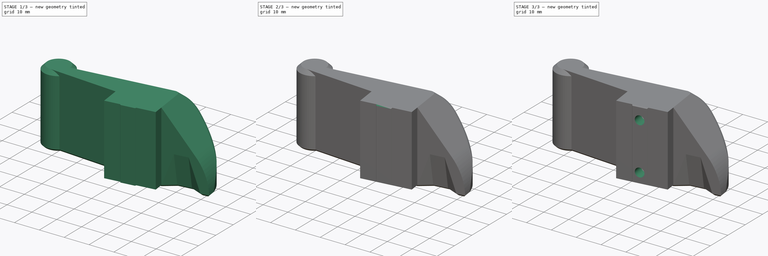
[diagram: build sequence overview — one tinted view per stage of 3, left to right]
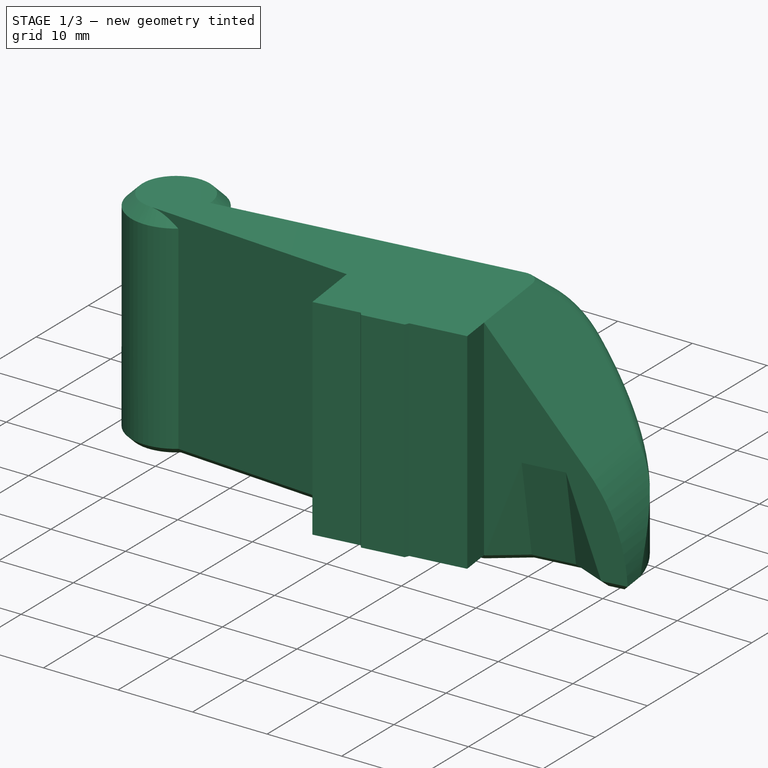
[diagram: stage 1 of 3 — iso view after this stage's code; geometry added in this stage tinted green]
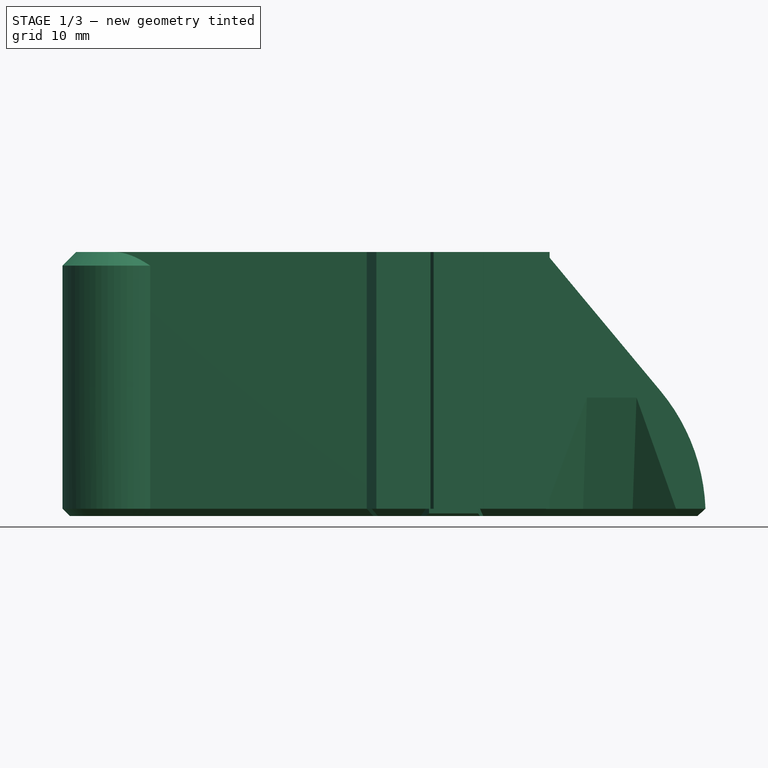
[diagram: stage 1 of 3 — front view after this stage's code; geometry added in this stage tinted green]
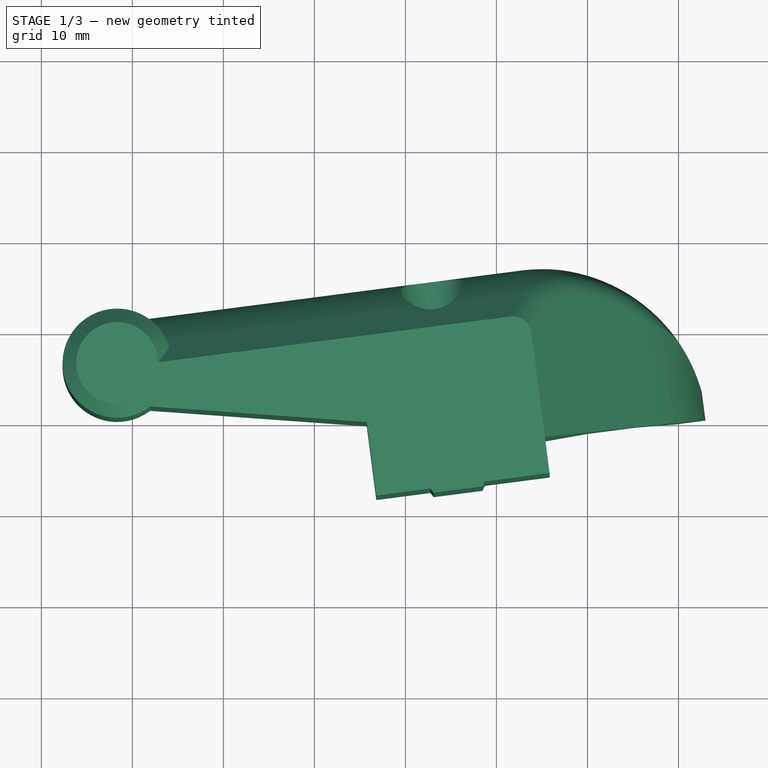
[diagram: stage 1 of 3 — top view after this stage's code; geometry added in this stage tinted green]
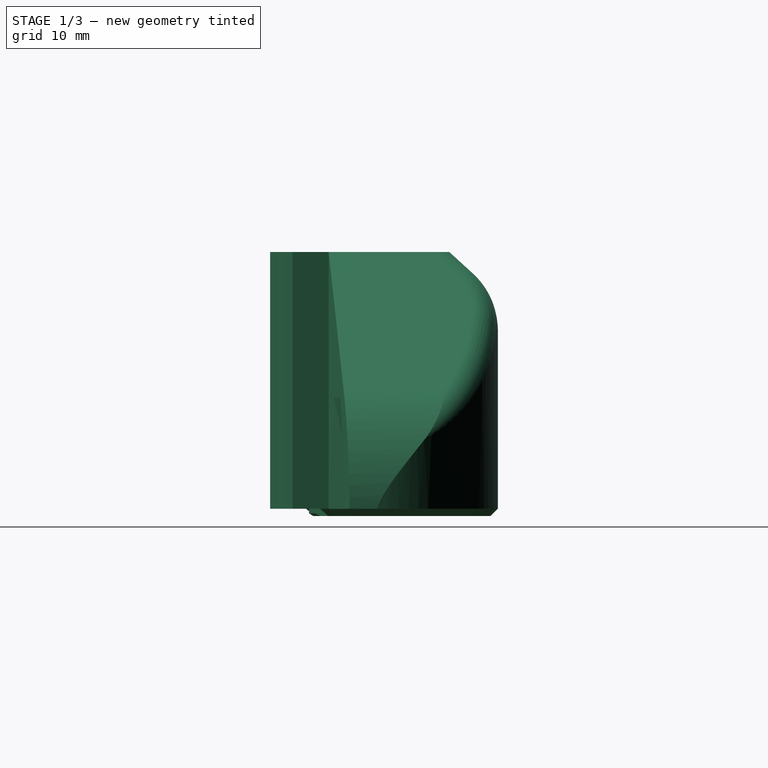
[diagram: stage 1 of 3 — right view after this stage's code; geometry added in this stage tinted green]
FCSTD DOCUMENT  (FreeCAD 1.0R39109 (Git))
Label: ExtendedHandle-Hinge_Top
License: All rights reserved
LicenseURL: https://en.wikipedia.org/wiki/All_rights_reserved
objects: Sketcher::SketchObject×4, PartDesign::Pocket×3, Part::Feature×1, Part::Refine×1, PartDesign::FeatureBase×1, PartDesign::Pad×1, PartDesign::Body×1
note: 25 computed .brp shape members not serialized (recipe doc carries the construction recipe); baked Part::Feature solids carry a one-line shape summary decoded from their .brp

FEATURE [Part::Feature] Handle_Hinge_Top001_solid  label="Handle_Hinge_Top001 (Solid)"
  shape: bbox 70.64 x 21.07 x 29 mm, 2824 faces (baked)
FEATURE [Part::Refine] Handle_Hinge_Top001_solid001  label="Handle_Hinge_Top001 (Solid)001"
  Source = -> Handle_Hinge_Top001_solid
FEATURE [PartDesign::FeatureBase] BaseFeature
  BaseFeature = -> Handle_Hinge_Top001_solid001
  Suppressed = false
FEATURE [Sketcher::SketchObject] Sketch
  ArcFitTolerance = 1e-06
  AttachmentSupport = -> [BaseFeature]
  ExternalGeometry = -> [BaseFeature]
  FullyConstrained = true
  MakeInternals = false
  MapMode = 5
  Placement = pos=(0,0,233.5) rot=(0,0,1;0rad)
  sketch-geometry (12):
    g0: LineSegment StartX=546.289 StartY=115.766 StartZ=0 EndX=546.804 EndY=111.8 EndZ=0
    g1: LineSegment StartX=546.804 StartY=111.8 StartZ=0 EndX=552.754 EndY=112.573 EndZ=0
    g2: LineSegment StartX=552.754 StartY=112.573 StartZ=0 EndX=553.105 EndY=112.114 EndZ=0
    g3: LineSegment StartX=553.105 StartY=112.114 StartZ=0 EndX=558.482 EndY=112.813 EndZ=0
    g4: LineSegment StartX=558.482 StartY=112.813 StartZ=0 EndX=558.704 EndY=113.345 EndZ=0
    g5: LineSegment StartX=558.704 StartY=113.345 StartZ=0 EndX=565.837 EndY=114.272 EndZ=0
    g6: LineSegment StartX=565.837 StartY=114.272 StartZ=0 EndX=565.322 EndY=118.238 EndZ=0
    g7: LineSegment StartX=565.322 StartY=118.238 StartZ=0 EndX=546.289 EndY=115.766 EndZ=0
    g8: LineSegment [constr] StartX=552.239 StartY=116.539 StartZ=0 EndX=552.754 EndY=112.573 EndZ=0
    g9: LineSegment [constr] StartX=558.189 StartY=117.312 StartZ=0 EndX=558.704 EndY=113.345 EndZ=0
    g10: LineSegment [constr] StartX=552.59 StartY=116.081 StartZ=0 EndX=553.105 EndY=112.114 EndZ=0
    g11: LineSegment [constr] StartX=557.967 StartY=116.779 StartZ=0 EndX=558.482 EndY=112.813 EndZ=0
  constraints (30):
    c: Coincident(g0,g-3)
    c: Coincident(g1,g0)
    c: Coincident(g2,g1)
    c: Coincident(g3,g2)
    c: Coincident(g4,g3)
    c: Coincident(g5,g4)
    c: Coincident(g6,g5)
    c: Coincident(g7,g6)
    c: Coincident(g7,g0)
    c: Coincident(g-4,g6)
    c: Angle(g0,g7) = 1.5708
    c: Parallel(g1,g7)
    c: Parallel(g1,g5)
    c: Parallel(g0,g6)
    c: Parallel(g3,g7)
    c: Distance(g0,g0) = 4
    c: Equal(g0,g6)
    c: Coincident(g8,g-3)
    c: Coincident(g8,g1)
    c: Coincident(g9,g-4)
    c: Coincident(g9,g4)
    c: Parallel(g0,g8)
    c: Parallel(g6,g9)
    c: Coincident(g10,g-5)
    c: Coincident(g10,g2)
    c: Coincident(g-5,g11)
    c: Coincident(g3,g11)
    c: Parallel(g8,g10)
    c: Parallel(g9,g11)
    c: Distance(g4,g4) = 0.577
FEATURE [PartDesign::Pad] Pad
  BaseFeature = -> BaseFeature
  Direction = (0,0,1)
  Length = 28.2
  Length2 = 10
  Profile = -> Sketch
  ReferenceAxis = -> Sketch [N_Axis]
  Refine = true
  Reversed = true
  Suppressed = false
  Type = 0
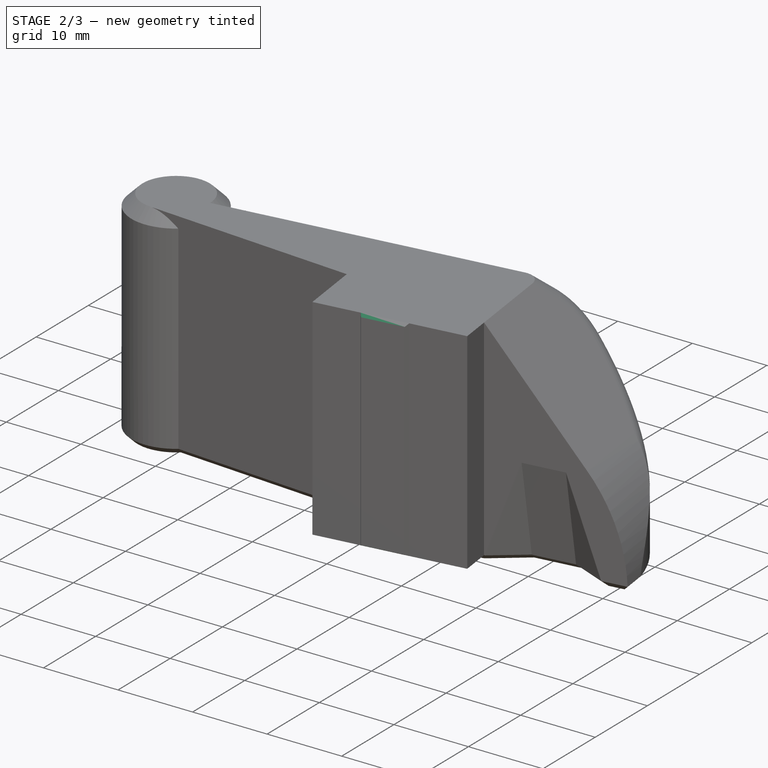
[diagram: stage 2 of 3 — iso view after this stage's code; geometry added in this stage tinted green]
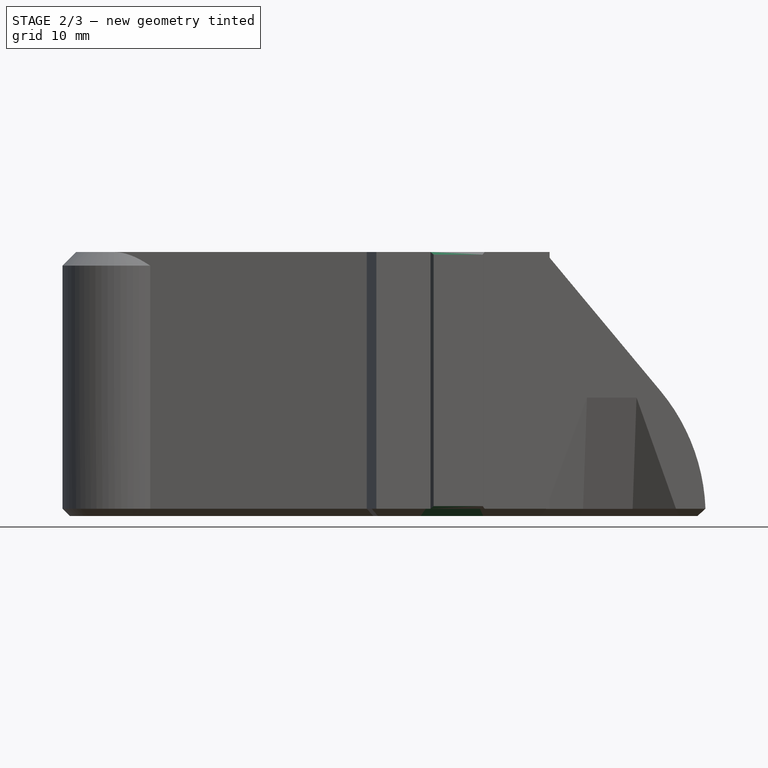
[diagram: stage 2 of 3 — front view after this stage's code; geometry added in this stage tinted green]
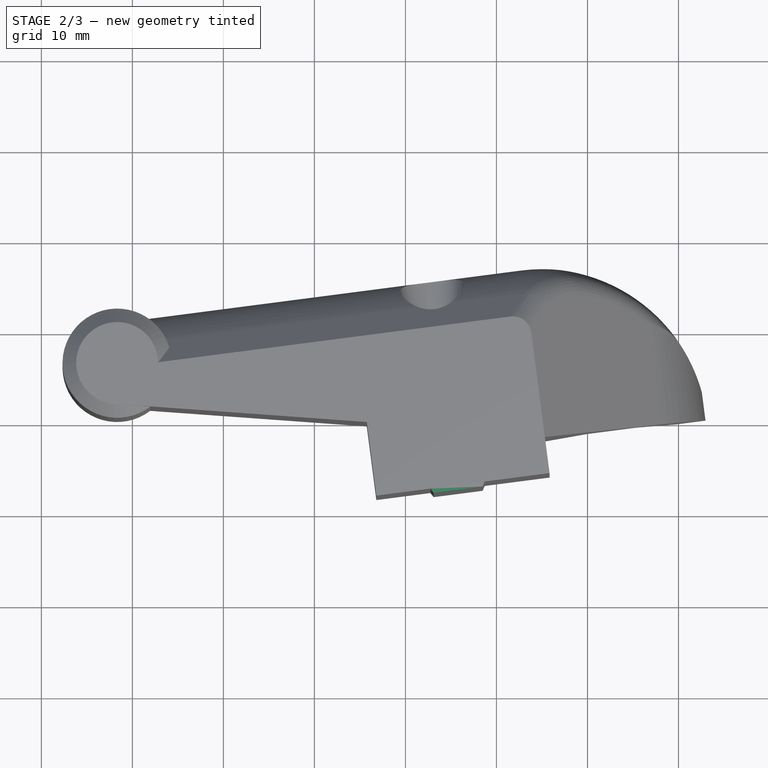
[diagram: stage 2 of 3 — top view after this stage's code; geometry added in this stage tinted green]
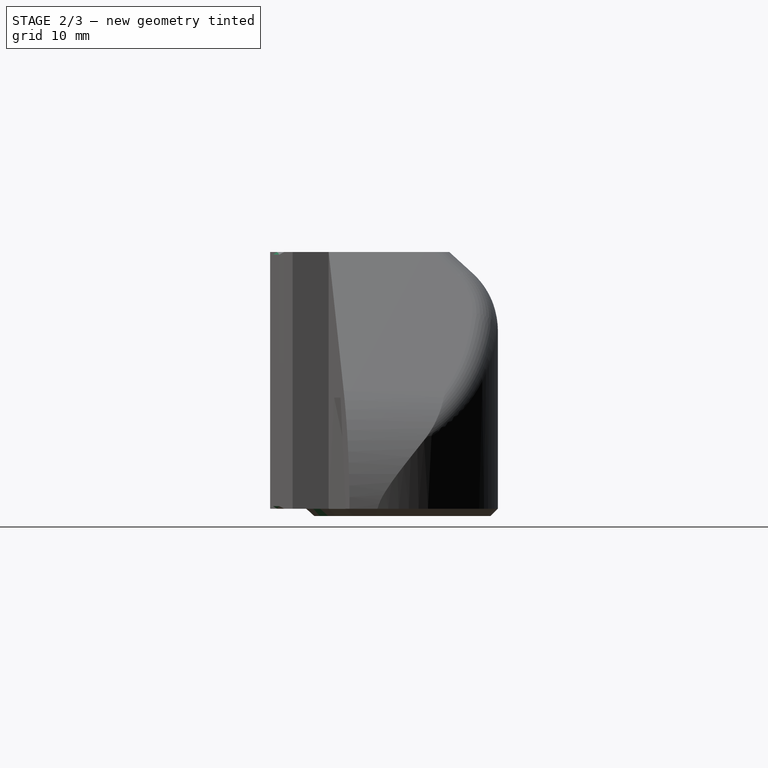
[diagram: stage 2 of 3 — right view after this stage's code; geometry added in this stage tinted green]
FEATURE [Sketcher::SketchObject] Sketch001
  ArcFitTolerance = 1e-06
  AttachmentSupport = -> [Pad]
  ExternalGeometry = -> [Pad]
  FullyConstrained = true
  MakeInternals = false
  MapMode = 5
  Placement = pos=(552.013,71.694,0) rot=(0.627012,-0.550843,-0.550843;2.0215rad)
  sketch-geometry (10):
    g0: LineSegment StartX=-40.4425 StartY=233.5 StartZ=0 EndX=-39.9429 EndY=233.5 EndZ=0
    g1: LineSegment StartX=-39.9429 StartY=233.5 StartZ=0 EndX=-39.9429 EndY=233.212 EndZ=0
    g2: LineSegment StartX=-39.9429 StartY=233.212 StartZ=0 EndX=-40.4425 EndY=233.5 EndZ=0
    g3: LineSegment StartX=-40.4425 StartY=205.3 StartZ=0 EndX=-39.9429 EndY=205.3 EndZ=0
    g4: LineSegment StartX=-39.9429 StartY=205.3 StartZ=0 EndX=-39.9429 EndY=205.588 EndZ=0
    g5: LineSegment StartX=-39.9429 StartY=205.588 StartZ=0 EndX=-40.4425 EndY=205.3 EndZ=0
    g6: LineSegment StartX=-44.4425 StartY=205.3 StartZ=0 EndX=-45.2425 EndY=204.5 EndZ=0
    g7: LineSegment StartX=-45.2425 StartY=204.5 StartZ=0 EndX=-43.7425 EndY=204.5 EndZ=0
    g8: LineSegment StartX=-43.7425 StartY=204.5 StartZ=0 EndX=-43.7425 EndY=205.3 EndZ=0
    g9: LineSegment StartX=-43.7425 StartY=205.3 StartZ=0 EndX=-44.4425 EndY=205.3 EndZ=0
  constraints (24):
    c: Coincident(g0,g-3)
    c: Coincident(g0,g-4)
    c: Coincident(g1,g0)
    c: Coincident(g2,g1)
    c: Coincident(g2,g0)
    c: Angle(g0,g1) = 1.5708
    c: Angle(g1,g2) = 1.0472
    c: Coincident(g3,g-6)
    c: Coincident(g3,g-7)
    c: Coincident(g4,g3)
    c: Vertical(g4)
    c: Coincident(g5,g3)
    c: Coincident(g5,g4)
    c: Angle(g5,g4) = 1.0472
    c: Coincident(g6,g-5)
    c: Coincident(g6,g-8)
    c: Coincident(g7,g6)
    c: Horizontal(g7)
    c: Coincident(g8,g7)
    c: Vertical(g8)
    c: Coincident(g9,g8)
    c: Coincident(g9,g6)
    c: Horizontal(g9)
    c: DistanceX(g7,g7) = 1.5
FEATURE [PartDesign::Pocket] Pocket
  BaseFeature = -> Pad
  Direction = (0.991671,0.128796,-1e-16)
  Length = 5
  Length2 = 5
  Profile = -> Sketch001
  ReferenceAxis = -> Sketch001 [N_Axis]
  Refine = true
  Suppressed = false
  Type = 1
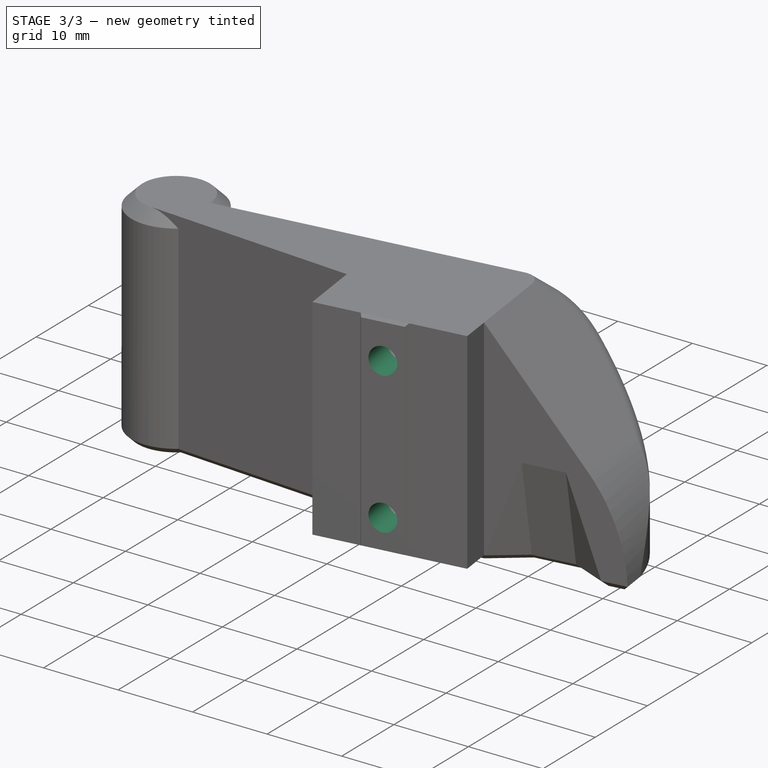
[diagram: stage 3 of 3 — iso view after this stage's code; geometry added in this stage tinted green]
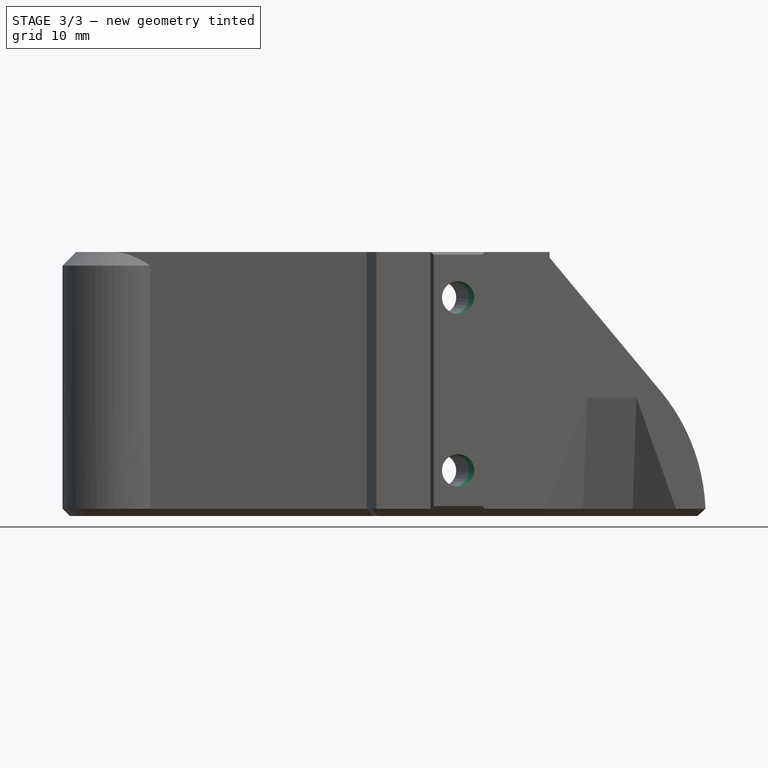
[diagram: stage 3 of 3 — front view after this stage's code; geometry added in this stage tinted green]
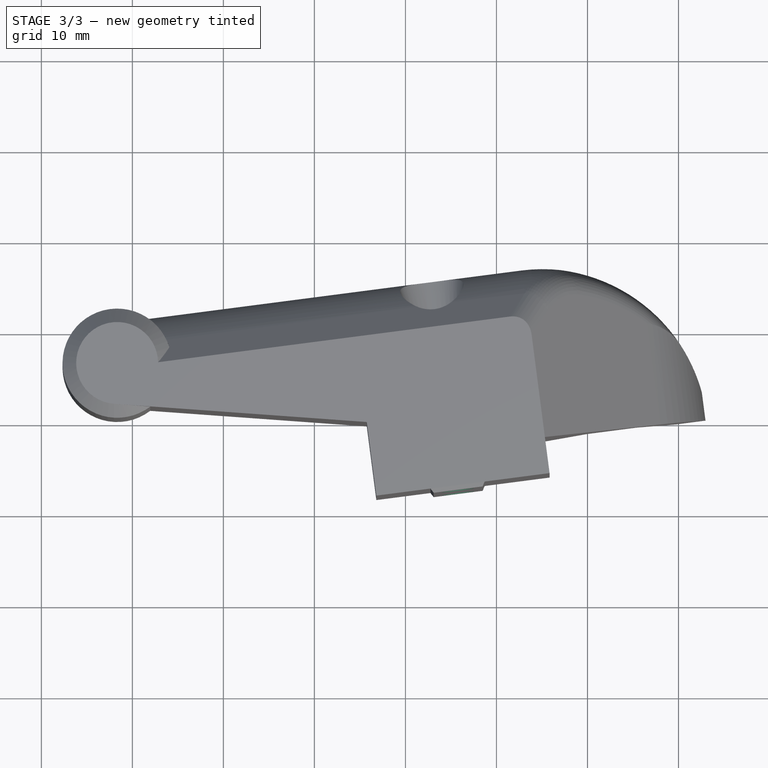
[diagram: stage 3 of 3 — top view after this stage's code; geometry added in this stage tinted green]
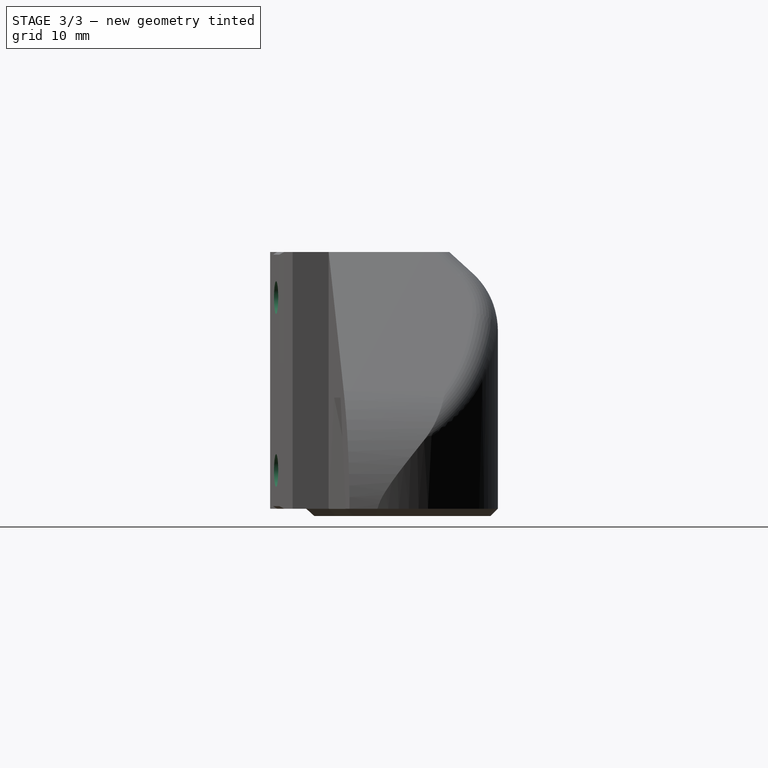
[diagram: stage 3 of 3 — right view after this stage's code; geometry added in this stage tinted green]
FEATURE [Sketcher::SketchObject] Sketch002
  ArcFitTolerance = 1e-06
  AttachmentSupport = -> [Pocket]
  ExternalGeometry = -> [Pocket]
  FullyConstrained = true
  MakeInternals = false
  MapMode = 5
  Placement = pos=(-5.72401,44.0724,0) rot=(-0.045679,0.706369,0.706369;3.23289rad)
  sketch-geometry (2):
    g0: Circle CenterX=-565.649 CenterY=228.5 CenterZ=0 NormalX=0 NormalY=0 NormalZ=1 AngleXU=0 Radius=1.79046
    g1: Circle CenterX=-565.649 CenterY=209.5 CenterZ=0 NormalX=0 NormalY=0 NormalZ=1 AngleXU=0 Radius=1.79046
  constraints (6):
    c: Vertical(g1,g0)
    c: Equal(g0,g1)
    c: Tangent(g1,g-3)
    c: Tangent(g1,g-4)
    c: DistanceY(g1,g0) = 19
    c: Tangent(g1,g-5)
FEATURE [PartDesign::Pocket] Pocket001
  BaseFeature = -> Pocket
  Direction = (0.128796,-0.991671,-3e-16)
  Length = 5
  Length2 = 5
  Profile = -> Sketch002
  ReferenceAxis = -> Sketch002 [N_Axis]
  Refine = true
  Suppressed = false
  Type = 1
FEATURE [Sketcher::SketchObject] Sketch003
  ArcFitTolerance = 1e-06
  AttachmentSupport = -> [Pocket001]
  ExternalGeometry = -> [Pocket001]
  FullyConstrained = true
  MakeInternals = false
  MapMode = 5
  Placement = pos=(-7.65577,58.9403,0) rot=(-0.045683,0.706369,0.706369;3.2329rad)
  sketch-geometry (2):
    g0: Circle CenterX=-565.65 CenterY=228.5 CenterZ=0 NormalX=0 NormalY=0 NormalZ=1 AngleXU=0 Radius=2.98977
    g1: Circle CenterX=-565.65 CenterY=209.5 CenterZ=0 NormalX=0 NormalY=0 NormalZ=1 AngleXU=0 Radius=2.98977
  constraints (6):
    c: Vertical(g1,g0)
    c: DistanceY(g1,g0) = 19
    c: Equal(g1,g0)
    c: Tangent(g-3,g1)
    c: Tangent(g-4,g1)
    c: Tangent(g-5,g1)
FEATURE [PartDesign::Pocket] Pocket002
  BaseFeature = -> Pocket001
  Direction = (0.128808,-0.99167,-2e-16)
  Length = 4
  Length2 = 5
  Profile = -> Sketch003
  ReferenceAxis = -> Sketch003 [N_Axis]
  Refine = true
  Suppressed = false
  Type = 0
FEATURE [PartDesign::Body] Body
  AllowCompound = false
  BaseFeature = -> Handle_Hinge_Top001_solid001
  Group = -> [BaseFeature,Sketch,Pad,Sketch001,Pocket,Sketch002,Pocket001,Sketch003,Pocket002]
  Origin = -> Origin
  Tip = -> Pocket002
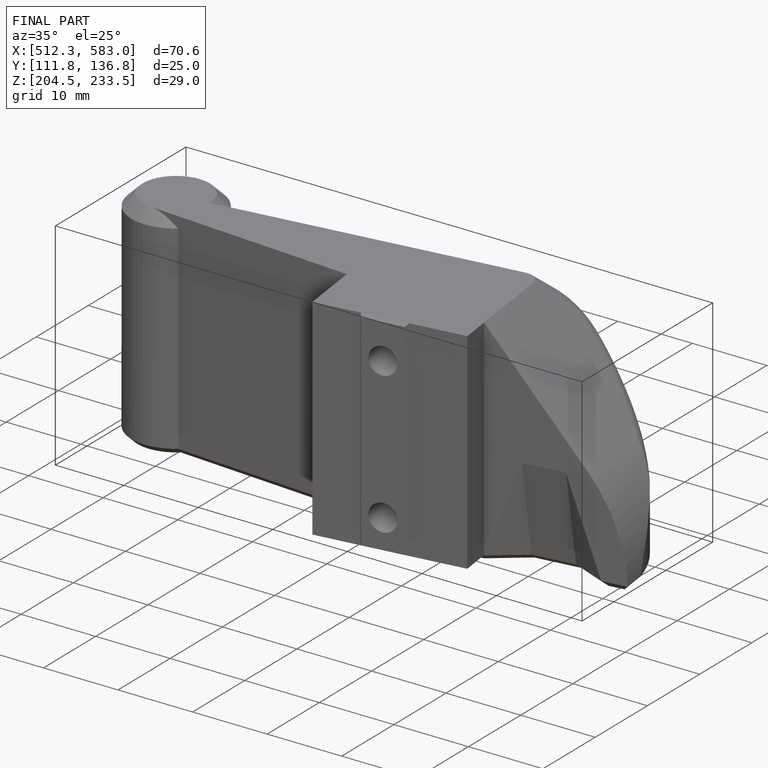
[diagram: finished part — iso view with bounding-box wireframe]
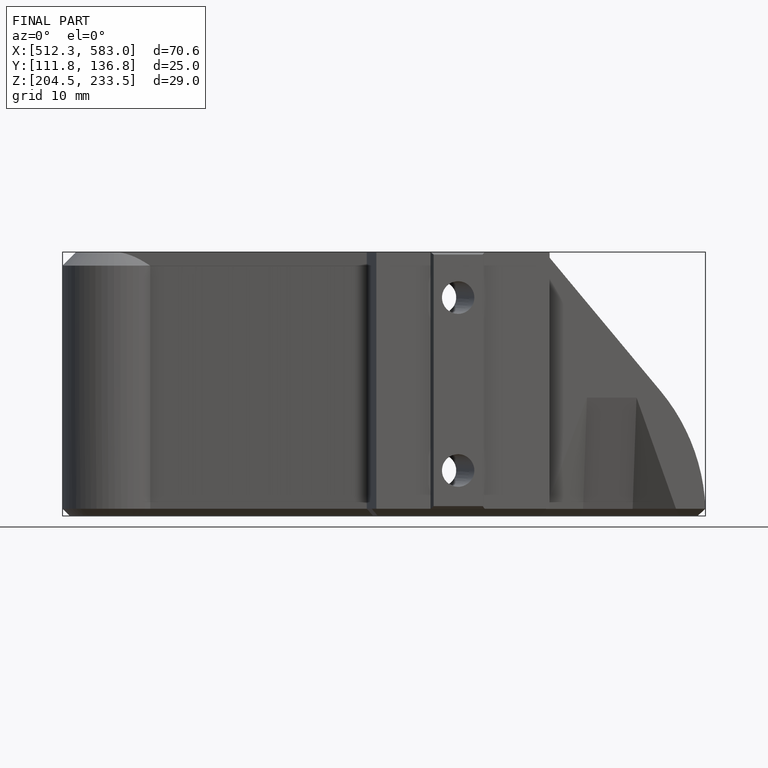
[diagram: finished part — front view with bounding-box wireframe]
